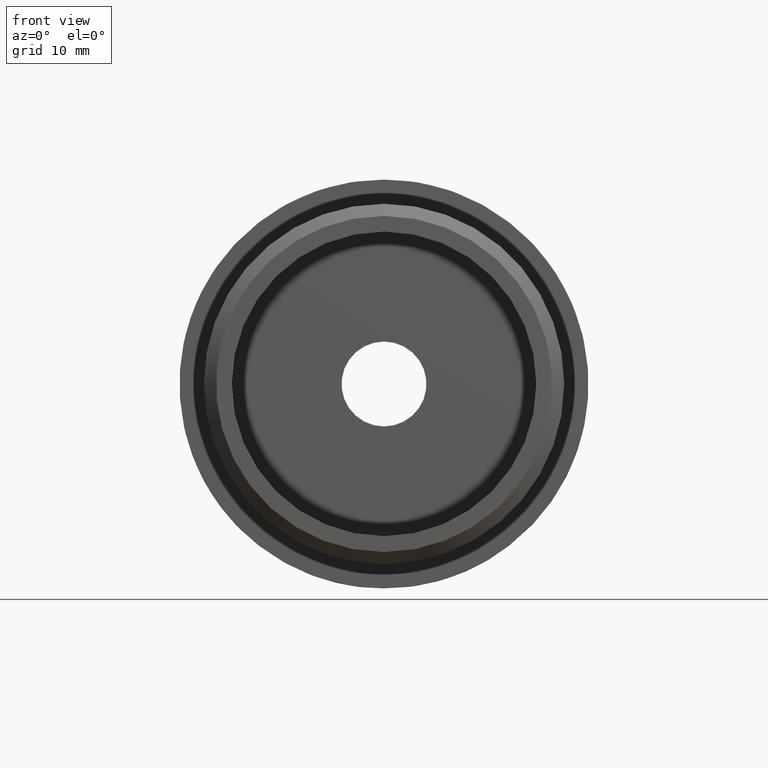
[diagram: clean part render]
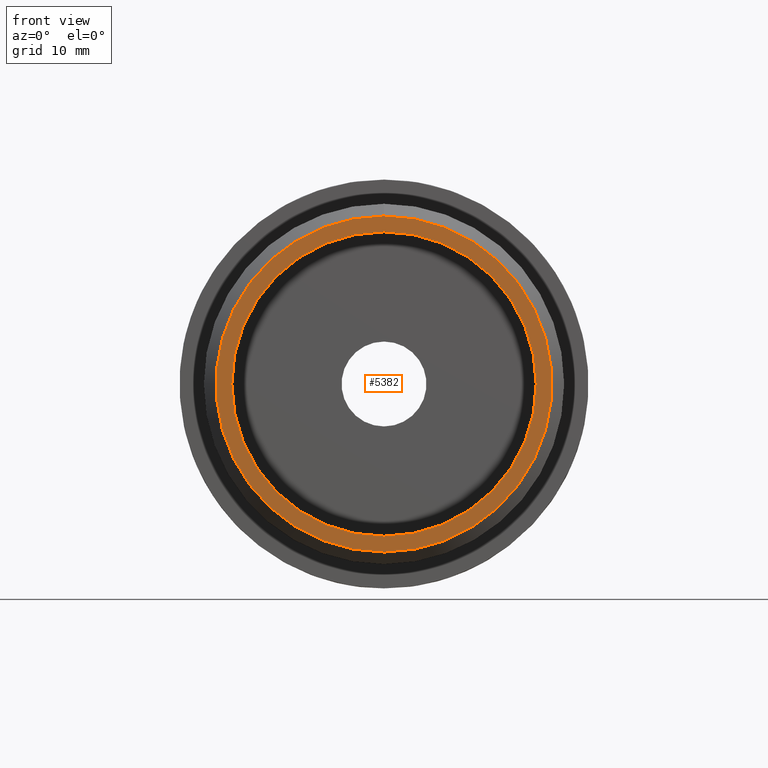
[diagram: same view with one face highlighted and labeled with its STEP entity id]
A machine part, front view. The second image highlights one B-rep face of the part: STEP entity #5382.
In plain terms, the highlighted planar face has unit normal (0, -1, 0).
Its self-contained STEP definition (entity closure, byte-faithful):
#186 = CARTESIAN_POINT ( 'NONE',  ( 0.0000000000000000000, -25.50000000000000400, 0.0000000000000000000 ) ) ;
#613 = DIRECTION ( 'NONE',  ( 0.0000000000000000000, -1.000000000000000000, 0.0000000000000000000 ) ) ;
#1144 = CARTESIAN_POINT ( 'NONE',  ( 0.0000000000000000000, -25.50000000000000400, 0.0000000000000000000 ) ) ;
#1201 = DIRECTION ( 'NONE',  ( 0.0000000000000000000, 0.0000000000000000000, -1.000000000000000000 ) ) ;
#1374 = FACE_BOUND ( 'NONE', #1546, .T. ) ;
#1546 = EDGE_LOOP ( 'NONE', ( #7001, #7313 ) ) ;
#1675 = FACE_OUTER_BOUND ( 'NONE', #6200, .T. ) ;
#2025 = AXIS2_PLACEMENT_3D ( 'NONE', #5675, #5894, #6584 ) ;
#2066 = EDGE_CURVE ( 'NONE', #3456, #12037, #3528, .T. ) ;
#2666 = CIRCLE ( 'NONE', #6760, 12.55000000000000100 ) ;
#3121 = CARTESIAN_POINT ( 'NONE',  ( 0.0000000000000000000, -25.50000000000000400, 0.0000000000000000000 ) ) ;
#3456 = VERTEX_POINT ( 'NONE', #12194 ) ;
#3528 = CIRCLE ( 'NONE', #2025, 13.84999999999999400 ) ;
#4057 = ORIENTED_EDGE ( 'NONE', *, *, #2066, .T. ) ;
#4123 = DIRECTION ( 'NONE',  ( 0.0000000000000000000, 0.0000000000000000000, -1.000000000000000000 ) ) ;
#4148 = DIRECTION ( 'NONE',  ( 0.0000000000000000000, -0.0000000000000000000, -1.000000000000000000 ) ) ;
#4831 = CIRCLE ( 'NONE', #12475, 12.55000000000000100 ) ;
#5266 = AXIS2_PLACEMENT_3D ( 'NONE', #1144, #10129, #4148 ) ;
#5382 = ADVANCED_FACE ( 'NONE', ( #1675, #1374 ), #6045, .T. ) ;
#5647 = CARTESIAN_POINT ( 'NONE',  ( 1.536931732929928400E-015, -25.50000000000000400, -12.55000000000000100 ) ) ;
#5657 = VERTEX_POINT ( 'NONE', #9645 ) ;
#5675 = CARTESIAN_POINT ( 'NONE',  ( 0.0000000000000000000, -25.50000000000000400, 0.0000000000000000000 ) ) ;
#5894 = DIRECTION ( 'NONE',  ( 0.0000000000000000000, -1.000000000000000000, 0.0000000000000000000 ) ) ;
#6045 = PLANE ( 'NONE',  #5266 ) ;
#6200 = EDGE_LOOP ( 'NONE', ( #6373, #4057 ) ) ;
#6227 = CARTESIAN_POINT ( 'NONE',  ( 0.0000000000000000000, -25.50000000000000400, 13.84999999999999400 ) ) ;
#6373 = ORIENTED_EDGE ( 'NONE', *, *, #7619, .T. ) ;
#6566 = CARTESIAN_POINT ( 'NONE',  ( 0.0000000000000000000, -25.50000000000000400, 0.0000000000000000000 ) ) ;
#6584 = DIRECTION ( 'NONE',  ( 0.0000000000000000000, 0.0000000000000000000, -1.000000000000000000 ) ) ;
#6760 = AXIS2_PLACEMENT_3D ( 'NONE', #186, #7163, #1201 ) ;
#7001 = ORIENTED_EDGE ( 'NONE', *, *, #7908, .F. ) ;
#7124 = AXIS2_PLACEMENT_3D ( 'NONE', #3121, #10096, #4123 ) ;
#7163 = DIRECTION ( 'NONE',  ( 0.0000000000000000000, -1.000000000000000000, 0.0000000000000000000 ) ) ;
#7227 = EDGE_CURVE ( 'NONE', #12928, #5657, #2666, .T. ) ;
#7313 = ORIENTED_EDGE ( 'NONE', *, *, #7227, .F. ) ;
#7569 = DIRECTION ( 'NONE',  ( 0.0000000000000000000, 0.0000000000000000000, -1.000000000000000000 ) ) ;
#7619 = EDGE_CURVE ( 'NONE', #12037, #3456, #10754, .T. ) ;
#7908 = EDGE_CURVE ( 'NONE', #5657, #12928, #4831, .T. ) ;
#9645 = CARTESIAN_POINT ( 'NONE',  ( 0.0000000000000000000, -25.50000000000000400, 12.55000000000000100 ) ) ;
#10096 = DIRECTION ( 'NONE',  ( 0.0000000000000000000, -1.000000000000000000, 0.0000000000000000000 ) ) ;
#10129 = DIRECTION ( 'NONE',  ( 0.0000000000000000000, -1.000000000000000000, 0.0000000000000000000 ) ) ;
#10754 = CIRCLE ( 'NONE', #7124, 13.84999999999999400 ) ;
#12037 = VERTEX_POINT ( 'NONE', #6227 ) ;
#12194 = CARTESIAN_POINT ( 'NONE',  ( 1.757368156776451600E-015, -25.50000000000000400, -13.84999999999999400 ) ) ;
#12475 = AXIS2_PLACEMENT_3D ( 'NONE', #6566, #613, #7569 ) ;
#12928 = VERTEX_POINT ( 'NONE', #5647 ) ;